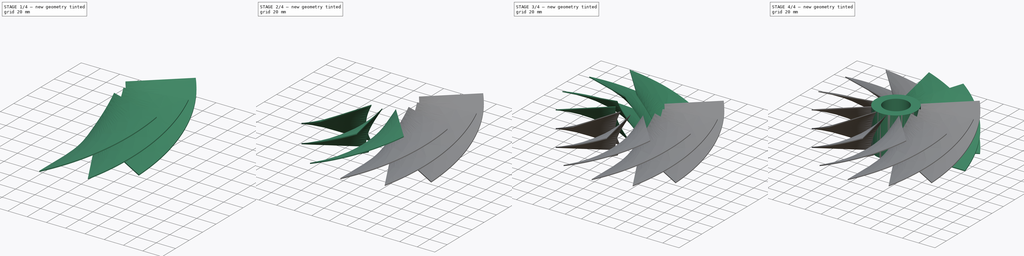
[diagram: build sequence overview — one tinted view per stage of 4, left to right]
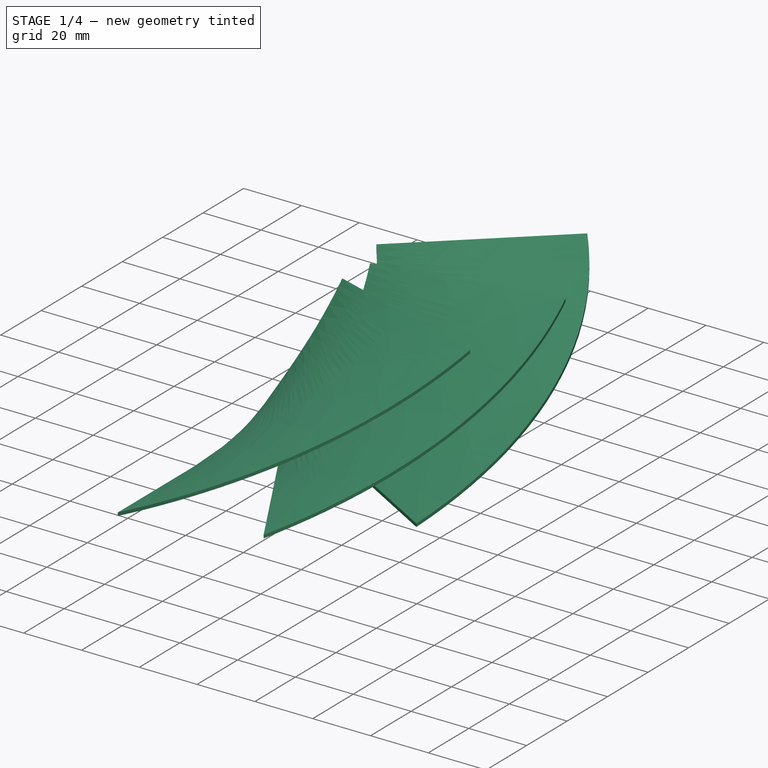
[diagram: stage 1 of 4 — iso view after this stage's code; geometry added in this stage tinted green]
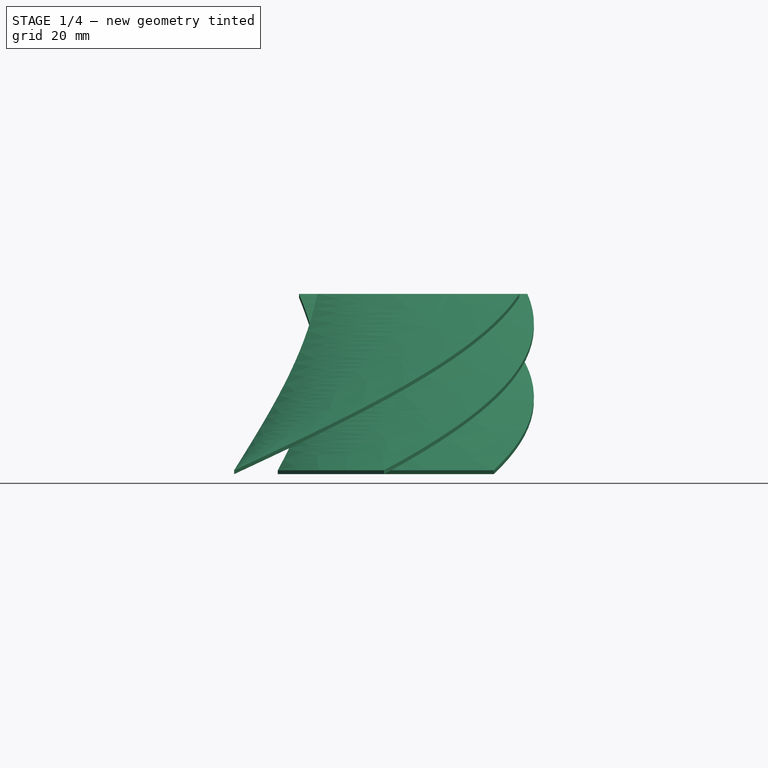
[diagram: stage 1 of 4 — front view after this stage's code; geometry added in this stage tinted green]
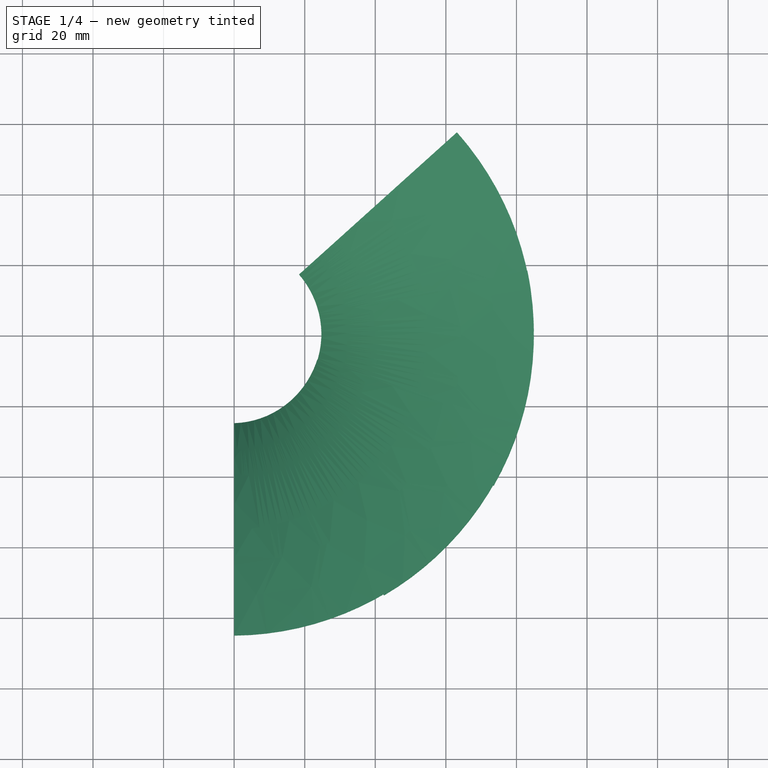
[diagram: stage 1 of 4 — top view after this stage's code; geometry added in this stage tinted green]
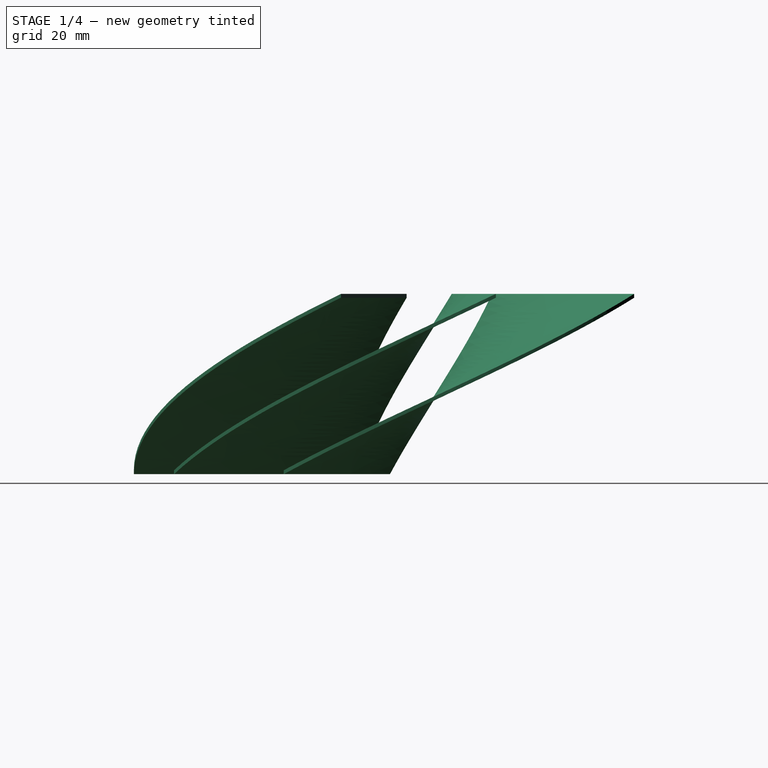
[diagram: stage 1 of 4 — right view after this stage's code; geometry added in this stage tinted green]
FCSTD DOCUMENT  (FreeCAD 0.21R33771 (Git))
Label: ProPeller
License: All rights reserved
LicenseURL: http://en.wikipedia.org/wiki/All_rights_reserved
objects: Part::Helix×12, Sketcher::SketchObject×12, Part::Sweep×12, Part::FeaturePython×1, PartDesign::Body×1
note: 38 computed .brp shape members not serialized (recipe doc carries the construction recipe); baked Part::Feature solids carry a one-line shape summary decoded from their .brp

FEATURE [Part::Helix] Helix012
  Angle = 0
  AttacherType = Attacher::AttachEngine3D
  Height = 50
  LocalCoord = 0
  Pitch = 250
  Radius = 25
  SegmentLength = 0
  Style = 1
FEATURE [Sketcher::SketchObject] Sketch011
  FullyConstrained = false
  MapMode = 5
  Placement = pos=(0,0,0) rot=(1,0,0;1.5708rad)
  sketch-geometry (4):
    g0: LineSegment StartX=24.7345 StartY=0 StartZ=0 EndX=84.951 EndY=0 EndZ=0
    g1: LineSegment StartX=84.951 StartY=0 StartZ=0 EndX=84.951 EndY=-1.10097 EndZ=0
    g2: LineSegment StartX=84.951 StartY=-1.10097 StartZ=0 EndX=24.7345 EndY=-1.10097 EndZ=0
    g3: LineSegment StartX=24.7345 StartY=-1.10097 StartZ=0 EndX=24.7345 EndY=0 EndZ=0
  constraints (9):
    c: Coincident(g0,g1)
    c: Coincident(g1,g2)
    c: Coincident(g2,g3)
    c: Coincident(g3,g0)
    c: Horizontal(g0)
    c: Horizontal(g2)
    c: Vertical(g1)
    c: Vertical(g3)
    c: PointOnObject(g0,g-1)
FEATURE [Part::Sweep] Sweep009
  Frenet = true
  Placement = pos=(0,0,0) rot=(0,0,1;4.71239rad)
  Sections = -> [Sketch011]
  Solid = true
  Spine = -> Helix012 [Edge1]
  Transition = 1
FEATURE [Part::Helix] Helix013
  Angle = 0
  AttacherType = Attacher::AttachEngine3D
  Height = 50
  LocalCoord = 0
  Pitch = 250
  Radius = 25
  SegmentLength = 0
  Style = 1
FEATURE [Sketcher::SketchObject] Sketch012
  FullyConstrained = false
  MapMode = 5
  Placement = pos=(0,0,0) rot=(1,0,0;1.5708rad)
  sketch-geometry (4):
    g0: LineSegment StartX=24.7345 StartY=0 StartZ=0 EndX=84.951 EndY=0 EndZ=0
    g1: LineSegment StartX=84.951 StartY=0 StartZ=0 EndX=84.951 EndY=-1.10097 EndZ=0
    g2: LineSegment StartX=84.951 StartY=-1.10097 StartZ=0 EndX=24.7345 EndY=-1.10097 EndZ=0
    g3: LineSegment StartX=24.7345 StartY=-1.10097 StartZ=0 EndX=24.7345 EndY=0 EndZ=0
  constraints (9):
    c: Coincident(g0,g1)
    c: Coincident(g1,g2)
    c: Coincident(g2,g3)
    c: Coincident(g3,g0)
    c: Horizontal(g0)
    c: Horizontal(g2)
    c: Vertical(g1)
    c: Vertical(g3)
    c: PointOnObject(g0,g-1)
FEATURE [Part::Sweep] Sweep010
  Frenet = true
  Placement = pos=(0,0,0) rot=(0,0,1;5.23599rad)
  Sections = -> [Sketch012]
  Solid = true
  Spine = -> Helix013 [Edge1]
  Transition = 1
FEATURE [Part::Helix] Helix014
  Angle = 0
  AttacherType = Attacher::AttachEngine3D
  Height = 50
  LocalCoord = 0
  Pitch = 250
  Radius = 25
  SegmentLength = 0
  Style = 1
FEATURE [Sketcher::SketchObject] Sketch013
  FullyConstrained = false
  MapMode = 5
  Placement = pos=(0,0,0) rot=(1,0,0;1.5708rad)
  sketch-geometry (4):
    g0: LineSegment StartX=24.7345 StartY=0 StartZ=0 EndX=84.951 EndY=0 EndZ=0
    g1: LineSegment StartX=84.951 StartY=0 StartZ=0 EndX=84.951 EndY=-1.10097 EndZ=0
    g2: LineSegment StartX=84.951 StartY=-1.10097 StartZ=0 EndX=24.7345 EndY=-1.10097 EndZ=0
    g3: LineSegment StartX=24.7345 StartY=-1.10097 StartZ=0 EndX=24.7345 EndY=0 EndZ=0
  constraints (9):
    c: Coincident(g0,g1)
    c: Coincident(g1,g2)
    c: Coincident(g2,g3)
    c: Coincident(g3,g0)
    c: Horizontal(g0)
    c: Horizontal(g2)
    c: Vertical(g1)
    c: Vertical(g3)
    c: PointOnObject(g0,g-1)
FEATURE [Part::Sweep] Sweep011
  Frenet = true
  Placement = pos=(0,0,0) rot=(0,0,1;5.75959rad)
  Sections = -> [Sketch013]
  Solid = true
  Spine = -> Helix014 [Edge1]
  Transition = 1
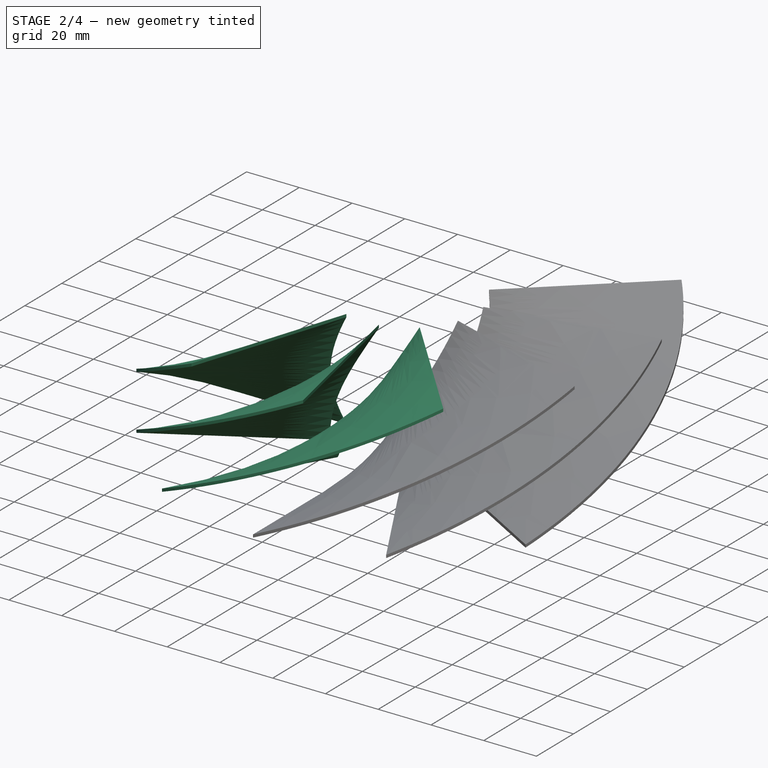
[diagram: stage 2 of 4 — iso view after this stage's code; geometry added in this stage tinted green]
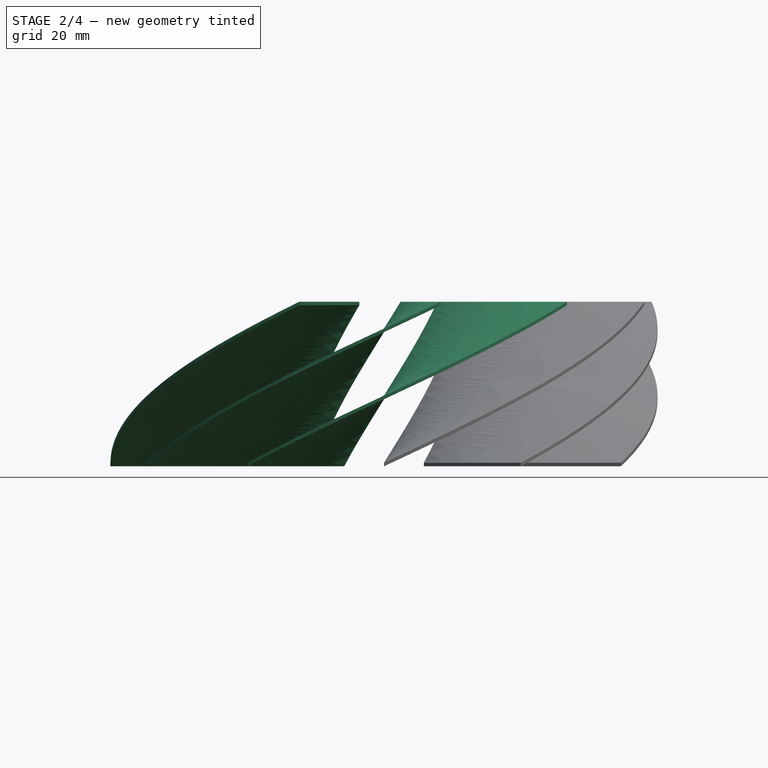
[diagram: stage 2 of 4 — front view after this stage's code; geometry added in this stage tinted green]
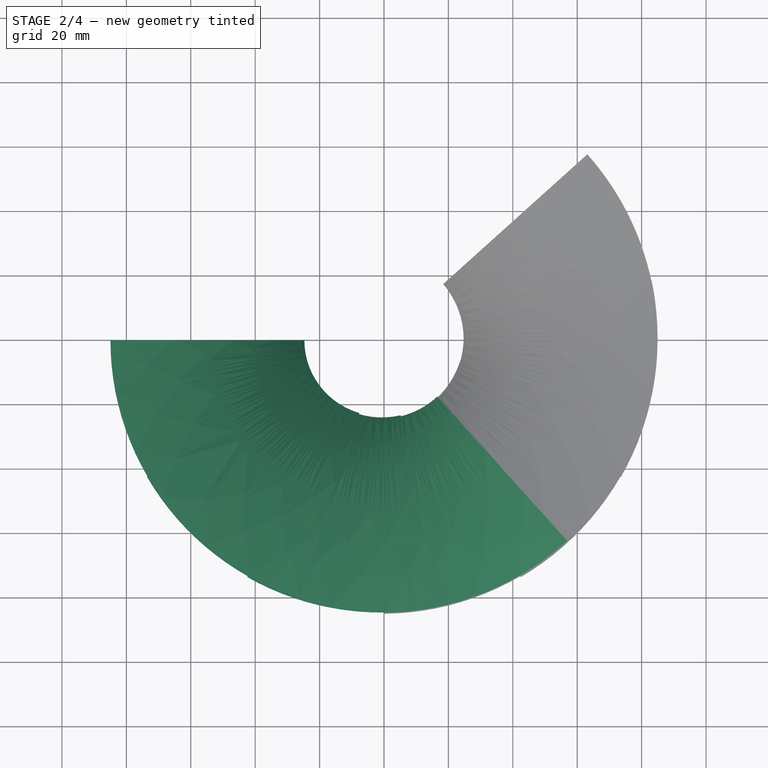
[diagram: stage 2 of 4 — top view after this stage's code; geometry added in this stage tinted green]
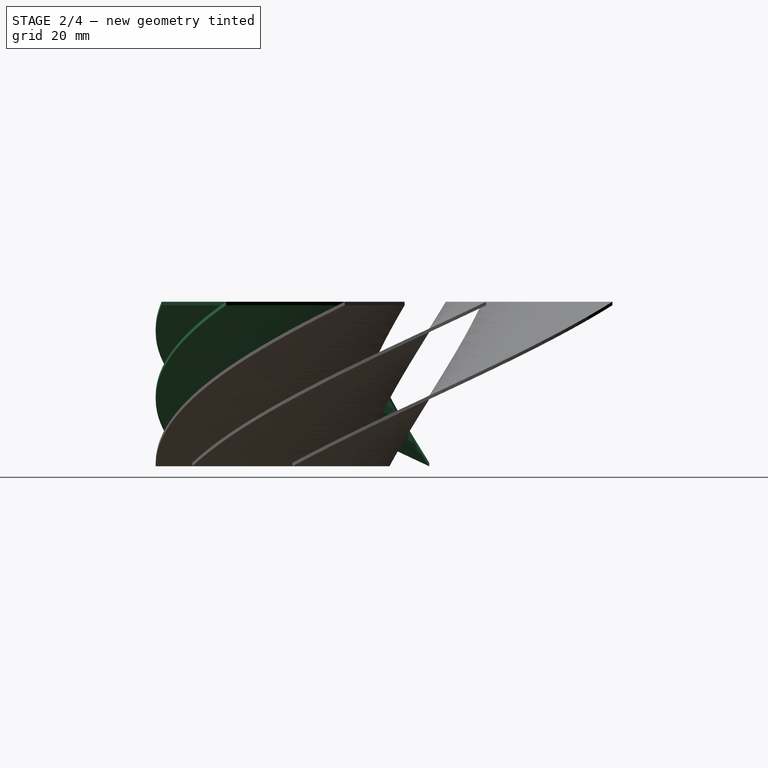
[diagram: stage 2 of 4 — right view after this stage's code; geometry added in this stage tinted green]
FEATURE [Part::Helix] Helix009
  Angle = 0
  AttacherType = Attacher::AttachEngine3D
  Height = 50
  LocalCoord = 0
  Pitch = 250
  Radius = 25
  SegmentLength = 0
  Style = 1
FEATURE [Sketcher::SketchObject] Sketch008
  FullyConstrained = false
  MapMode = 5
  Placement = pos=(0,0,0) rot=(1,0,0;1.5708rad)
  sketch-geometry (4):
    g0: LineSegment StartX=24.7345 StartY=0 StartZ=0 EndX=84.951 EndY=0 EndZ=0
    g1: LineSegment StartX=84.951 StartY=0 StartZ=0 EndX=84.951 EndY=-1.10097 EndZ=0
    g2: LineSegment StartX=84.951 StartY=-1.10097 StartZ=0 EndX=24.7345 EndY=-1.10097 EndZ=0
    g3: LineSegment StartX=24.7345 StartY=-1.10097 StartZ=0 EndX=24.7345 EndY=0 EndZ=0
  constraints (9):
    c: Coincident(g0,g1)
    c: Coincident(g1,g2)
    c: Coincident(g2,g3)
    c: Coincident(g3,g0)
    c: Horizontal(g0)
    c: Horizontal(g2)
    c: Vertical(g1)
    c: Vertical(g3)
    c: PointOnObject(g0,g-1)
FEATURE [Part::Sweep] Sweep006
  Frenet = true
  Placement = pos=(0,0,0) rot=(0,0,1;3.14159rad)
  Sections = -> [Sketch008]
  Solid = true
  Spine = -> Helix009 [Edge1]
  Transition = 1
FEATURE [Part::Helix] Helix010
  Angle = 0
  AttacherType = Attacher::AttachEngine3D
  Height = 50
  LocalCoord = 0
  Pitch = 250
  Radius = 25
  SegmentLength = 0
  Style = 1
FEATURE [Sketcher::SketchObject] Sketch009
  FullyConstrained = false
  MapMode = 5
  Placement = pos=(0,0,0) rot=(1,0,0;1.5708rad)
  sketch-geometry (4):
    g0: LineSegment StartX=24.7345 StartY=0 StartZ=0 EndX=84.951 EndY=0 EndZ=0
    g1: LineSegment StartX=84.951 StartY=0 StartZ=0 EndX=84.951 EndY=-1.10097 EndZ=0
    g2: LineSegment StartX=84.951 StartY=-1.10097 StartZ=0 EndX=24.7345 EndY=-1.10097 EndZ=0
    g3: LineSegment StartX=24.7345 StartY=-1.10097 StartZ=0 EndX=24.7345 EndY=0 EndZ=0
  constraints (9):
    c: Coincident(g0,g1)
    c: Coincident(g1,g2)
    c: Coincident(g2,g3)
    c: Coincident(g3,g0)
    c: Horizontal(g0)
    c: Horizontal(g2)
    c: Vertical(g1)
    c: Vertical(g3)
    c: PointOnObject(g0,g-1)
FEATURE [Part::Sweep] Sweep007
  Frenet = true
  Placement = pos=(0,0,0) rot=(0,0,1;3.66519rad)
  Sections = -> [Sketch009]
  Solid = true
  Spine = -> Helix010 [Edge1]
  Transition = 1
FEATURE [Part::Helix] Helix011
  Angle = 0
  AttacherType = Attacher::AttachEngine3D
  Height = 50
  LocalCoord = 0
  Pitch = 250
  Radius = 25
  SegmentLength = 0
  Style = 1
FEATURE [Sketcher::SketchObject] Sketch010
  FullyConstrained = false
  MapMode = 5
  Placement = pos=(0,0,0) rot=(1,0,0;1.5708rad)
  sketch-geometry (4):
    g0: LineSegment StartX=24.7345 StartY=0 StartZ=0 EndX=84.951 EndY=0 EndZ=0
    g1: LineSegment StartX=84.951 StartY=0 StartZ=0 EndX=84.951 EndY=-1.10097 EndZ=0
    g2: LineSegment StartX=84.951 StartY=-1.10097 StartZ=0 EndX=24.7345 EndY=-1.10097 EndZ=0
    g3: LineSegment StartX=24.7345 StartY=-1.10097 StartZ=0 EndX=24.7345 EndY=0 EndZ=0
  constraints (9):
    c: Coincident(g0,g1)
    c: Coincident(g1,g2)
    c: Coincident(g2,g3)
    c: Coincident(g3,g0)
    c: Horizontal(g0)
    c: Horizontal(g2)
    c: Vertical(g1)
    c: Vertical(g3)
    c: PointOnObject(g0,g-1)
FEATURE [Part::Sweep] Sweep008
  Frenet = true
  Placement = pos=(0,0,0) rot=(0,0,1;4.18879rad)
  Sections = -> [Sketch010]
  Solid = true
  Spine = -> Helix011 [Edge1]
  Transition = 1
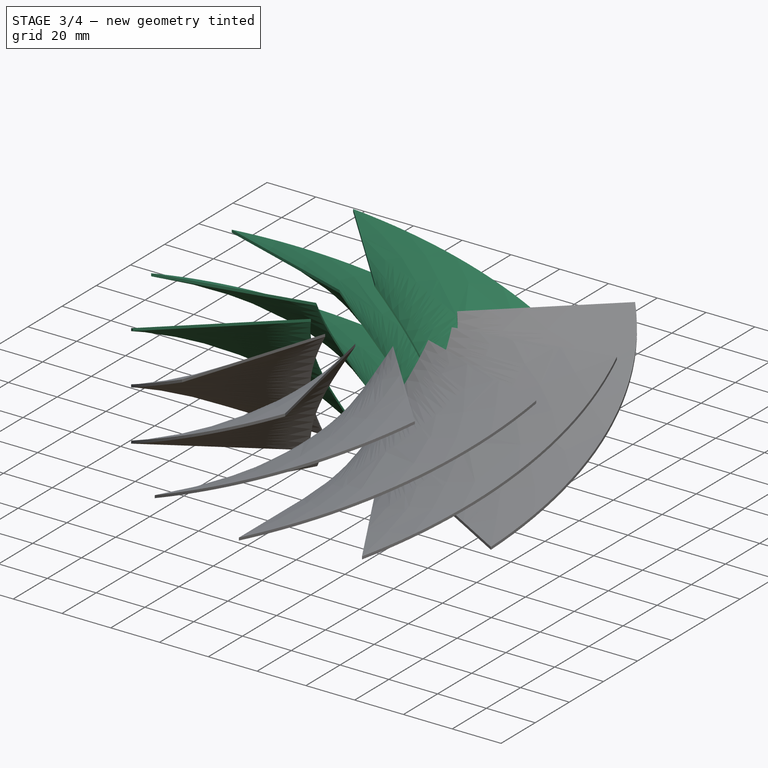
[diagram: stage 3 of 4 — iso view after this stage's code; geometry added in this stage tinted green]
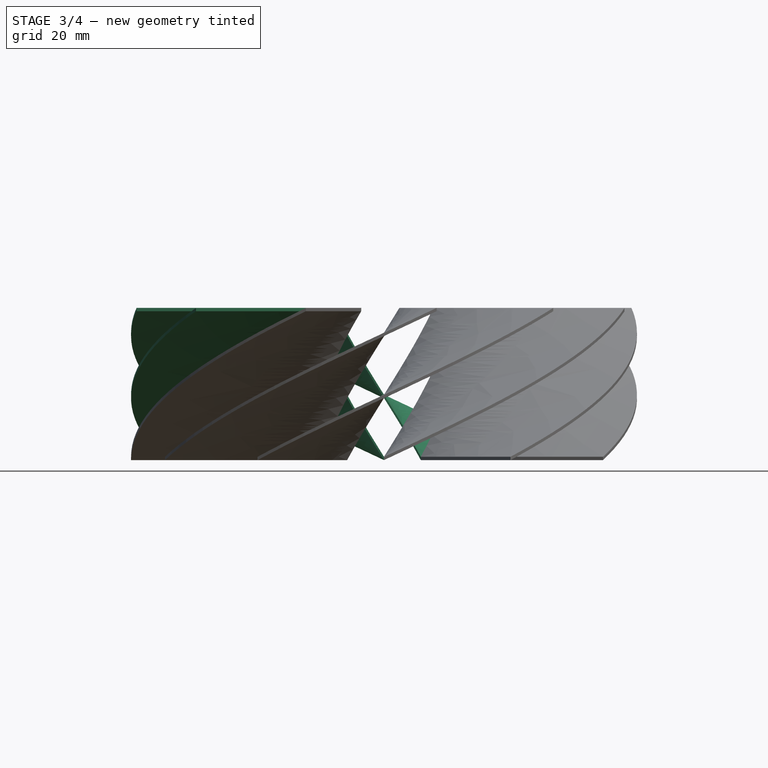
[diagram: stage 3 of 4 — front view after this stage's code; geometry added in this stage tinted green]
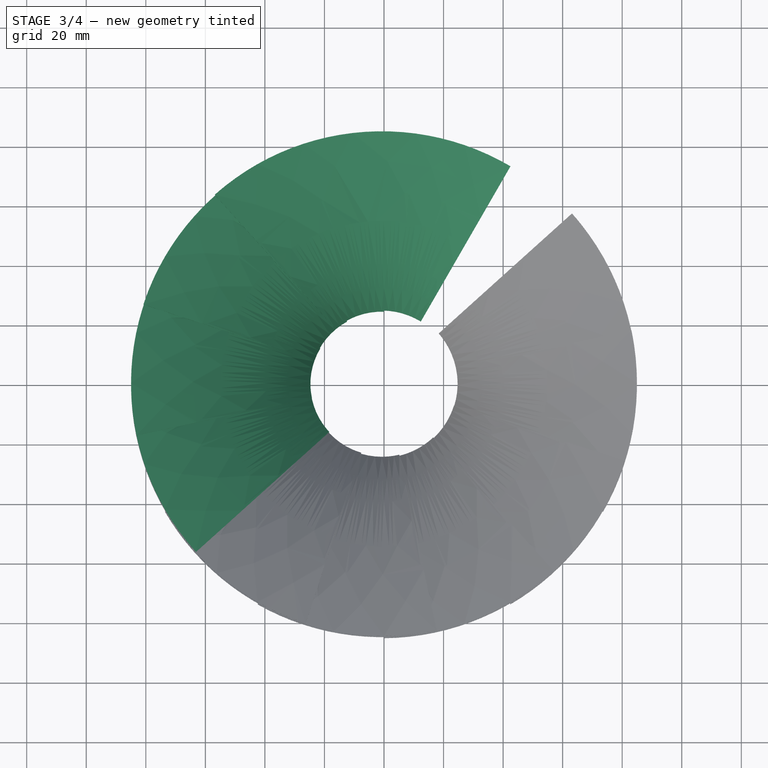
[diagram: stage 3 of 4 — top view after this stage's code; geometry added in this stage tinted green]
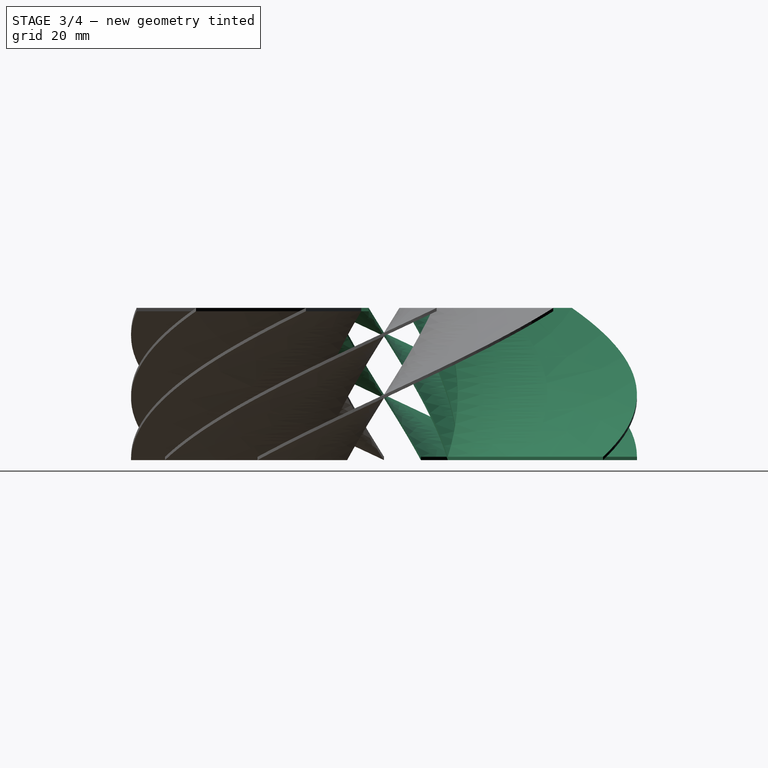
[diagram: stage 3 of 4 — right view after this stage's code; geometry added in this stage tinted green]
FEATURE [Part::Helix] Helix005
  Angle = 0
  AttacherType = Attacher::AttachEngine3D
  Height = 50
  LocalCoord = 0
  Pitch = 250
  Radius = 25
  SegmentLength = 0
  Style = 1
FEATURE [Sketcher::SketchObject] Sketch004
  FullyConstrained = false
  MapMode = 5
  Placement = pos=(0,0,0) rot=(1,0,0;1.5708rad)
  sketch-geometry (4):
    g0: LineSegment StartX=24.7345 StartY=0 StartZ=0 EndX=84.951 EndY=0 EndZ=0
    g1: LineSegment StartX=84.951 StartY=0 StartZ=0 EndX=84.951 EndY=-1.10097 EndZ=0
    g2: LineSegment StartX=84.951 StartY=-1.10097 StartZ=0 EndX=24.7345 EndY=-1.10097 EndZ=0
    g3: LineSegment StartX=24.7345 StartY=-1.10097 StartZ=0 EndX=24.7345 EndY=0 EndZ=0
  constraints (9):
    c: Coincident(g0,g1)
    c: Coincident(g1,g2)
    c: Coincident(g2,g3)
    c: Coincident(g3,g0)
    c: Horizontal(g0)
    c: Horizontal(g2)
    c: Vertical(g1)
    c: Vertical(g3)
    c: PointOnObject(g0,g-1)
FEATURE [Part::Sweep] Sweep002
  Frenet = true
  Placement = pos=(0,0,0) rot=(0,0,1;1.0472rad)
  Sections = -> [Sketch004]
  Solid = true
  Spine = -> Helix005 [Edge1]
  Transition = 1
FEATURE [Part::Helix] Helix006
  Angle = 0
  AttacherType = Attacher::AttachEngine3D
  Height = 50
  LocalCoord = 0
  Pitch = 250
  Radius = 25
  SegmentLength = 0
  Style = 1
FEATURE [Sketcher::SketchObject] Sketch005
  FullyConstrained = false
  MapMode = 5
  Placement = pos=(0,0,0) rot=(1,0,0;1.5708rad)
  sketch-geometry (4):
    g0: LineSegment StartX=24.7345 StartY=0 StartZ=0 EndX=84.951 EndY=0 EndZ=0
    g1: LineSegment StartX=84.951 StartY=0 StartZ=0 EndX=84.951 EndY=-1.10097 EndZ=0
    g2: LineSegment StartX=84.951 StartY=-1.10097 StartZ=0 EndX=24.7345 EndY=-1.10097 EndZ=0
    g3: LineSegment StartX=24.7345 StartY=-1.10097 StartZ=0 EndX=24.7345 EndY=0 EndZ=0
  constraints (9):
    c: Coincident(g0,g1)
    c: Coincident(g1,g2)
    c: Coincident(g2,g3)
    c: Coincident(g3,g0)
    c: Horizontal(g0)
    c: Horizontal(g2)
    c: Vertical(g1)
    c: Vertical(g3)
    c: PointOnObject(g0,g-1)
FEATURE [Part::Sweep] Sweep003
  Frenet = true
  Placement = pos=(0,0,0) rot=(0,0,1;1.5708rad)
  Sections = -> [Sketch005]
  Solid = true
  Spine = -> Helix006 [Edge1]
  Transition = 1
FEATURE [Part::Helix] Helix007
  Angle = 0
  AttacherType = Attacher::AttachEngine3D
  Height = 50
  LocalCoord = 0
  Pitch = 250
  Radius = 25
  SegmentLength = 0
  Style = 1
FEATURE [Sketcher::SketchObject] Sketch006
  FullyConstrained = false
  MapMode = 5
  Placement = pos=(0,0,0) rot=(1,0,0;1.5708rad)
  sketch-geometry (4):
    g0: LineSegment StartX=24.7345 StartY=0 StartZ=0 EndX=84.951 EndY=0 EndZ=0
    g1: LineSegment StartX=84.951 StartY=0 StartZ=0 EndX=84.951 EndY=-1.10097 EndZ=0
    g2: LineSegment StartX=84.951 StartY=-1.10097 StartZ=0 EndX=24.7345 EndY=-1.10097 EndZ=0
    g3: LineSegment StartX=24.7345 StartY=-1.10097 StartZ=0 EndX=24.7345 EndY=0 EndZ=0
  constraints (9):
    c: Coincident(g0,g1)
    c: Coincident(g1,g2)
    c: Coincident(g2,g3)
    c: Coincident(g3,g0)
    c: Horizontal(g0)
    c: Horizontal(g2)
    c: Vertical(g1)
    c: Vertical(g3)
    c: PointOnObject(g0,g-1)
FEATURE [Part::Sweep] Sweep004
  Frenet = true
  Placement = pos=(0,0,0) rot=(0,0,1;2.0944rad)
  Sections = -> [Sketch006]
  Solid = true
  Spine = -> Helix007 [Edge1]
  Transition = 1
FEATURE [Part::Helix] Helix008
  Angle = 0
  AttacherType = Attacher::AttachEngine3D
  Height = 50
  LocalCoord = 0
  Pitch = 250
  Radius = 25
  SegmentLength = 0
  Style = 1
FEATURE [Sketcher::SketchObject] Sketch007
  FullyConstrained = false
  MapMode = 5
  Placement = pos=(0,0,0) rot=(1,0,0;1.5708rad)
  sketch-geometry (4):
    g0: LineSegment StartX=24.7345 StartY=0 StartZ=0 EndX=84.951 EndY=0 EndZ=0
    g1: LineSegment StartX=84.951 StartY=0 StartZ=0 EndX=84.951 EndY=-1.10097 EndZ=0
    g2: LineSegment StartX=84.951 StartY=-1.10097 StartZ=0 EndX=24.7345 EndY=-1.10097 EndZ=0
    g3: LineSegment StartX=24.7345 StartY=-1.10097 StartZ=0 EndX=24.7345 EndY=0 EndZ=0
  constraints (9):
    c: Coincident(g0,g1)
    c: Coincident(g1,g2)
    c: Coincident(g2,g3)
    c: Coincident(g3,g0)
    c: Horizontal(g0)
    c: Horizontal(g2)
    c: Vertical(g1)
    c: Vertical(g3)
    c: PointOnObject(g0,g-1)
FEATURE [Part::Sweep] Sweep005
  Frenet = true
  Placement = pos=(0,0,0) rot=(0,0,1;2.61799rad)
  Sections = -> [Sketch007]
  Solid = true
  Spine = -> Helix008 [Edge1]
  Transition = 1
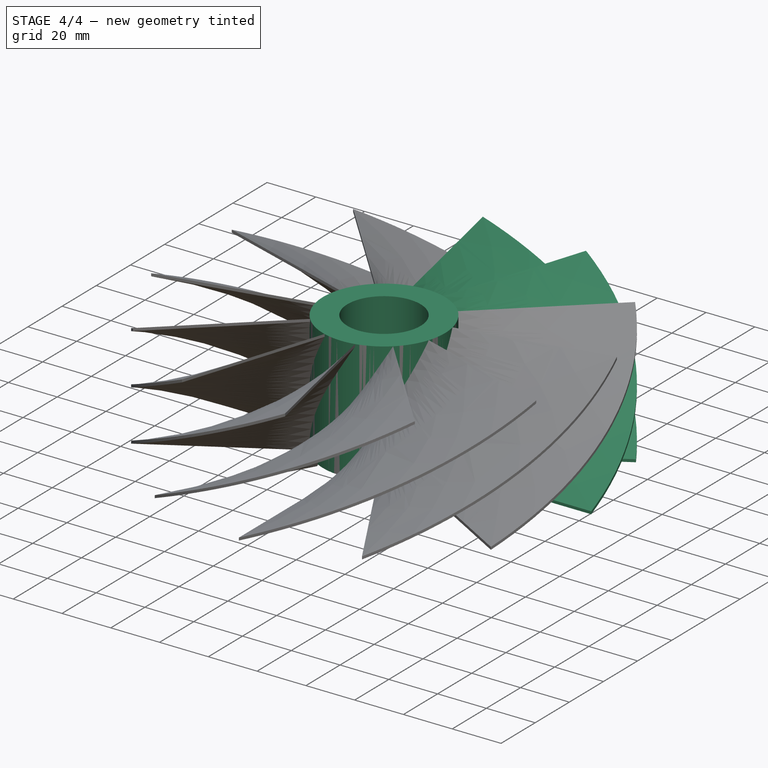
[diagram: stage 4 of 4 — iso view after this stage's code; geometry added in this stage tinted green]
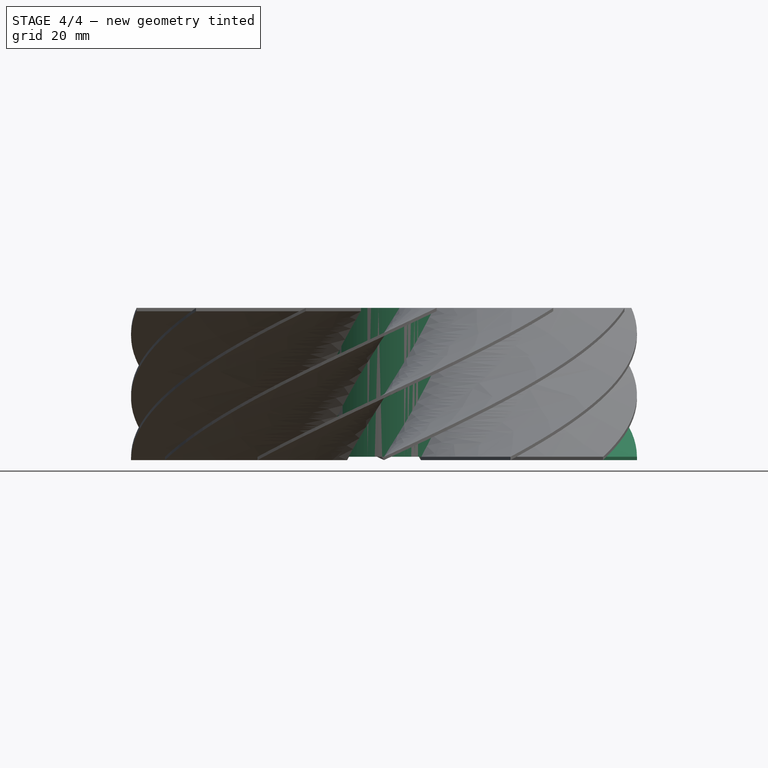
[diagram: stage 4 of 4 — front view after this stage's code; geometry added in this stage tinted green]
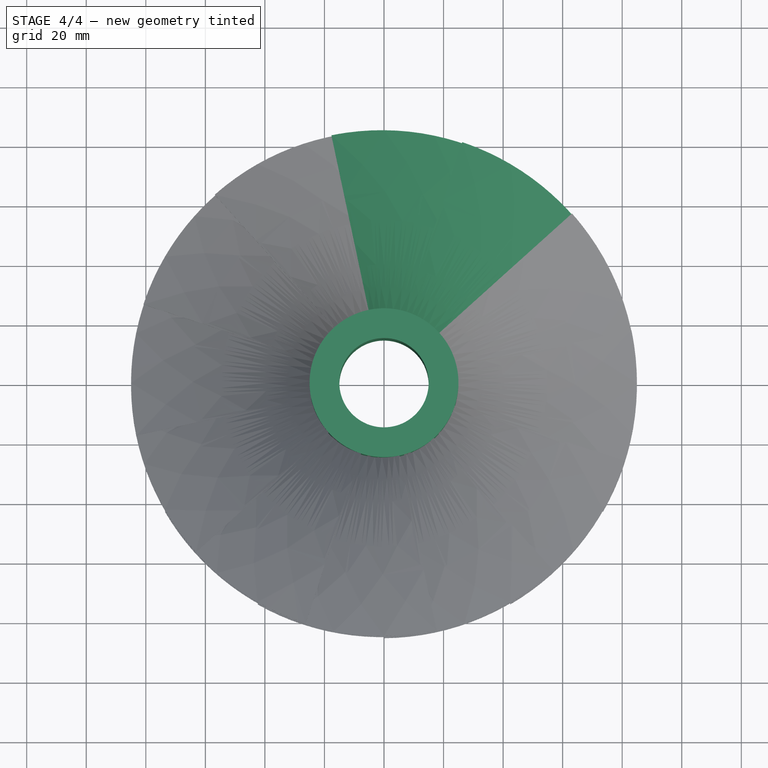
[diagram: stage 4 of 4 — top view after this stage's code; geometry added in this stage tinted green]
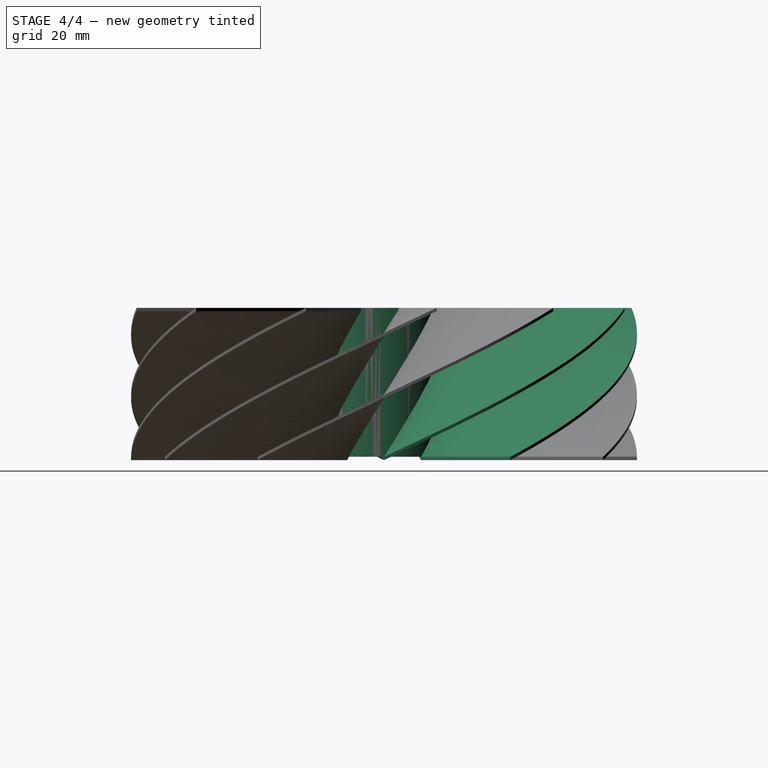
[diagram: stage 4 of 4 — right view after this stage's code; geometry added in this stage tinted green]
FEATURE [Part::FeaturePython] Tube  # WARN: FeaturePython — macro-defined, semantics opaque (R4)
  AttacherType = Attacher::AttachEngine3D
  Height = 50
  InnerRadius = 15
  OuterRadius = 25
FEATURE [Part::Helix] Helix003
  Angle = 0
  AttacherType = Attacher::AttachEngine3D
  Height = 50
  LocalCoord = 0
  Pitch = 250
  Radius = 25
  SegmentLength = 0
  Style = 1
FEATURE [Sketcher::SketchObject] Sketch002
  FullyConstrained = false
  MapMode = 5
  Placement = pos=(0,0,0) rot=(1,0,0;1.5708rad)
  sketch-geometry (4):
    g0: LineSegment StartX=24.7345 StartY=0 StartZ=0 EndX=84.951 EndY=0 EndZ=0
    g1: LineSegment StartX=84.951 StartY=0 StartZ=0 EndX=84.951 EndY=-1.10097 EndZ=0
    g2: LineSegment StartX=84.951 StartY=-1.10097 StartZ=0 EndX=24.7345 EndY=-1.10097 EndZ=0
    g3: LineSegment StartX=24.7345 StartY=-1.10097 StartZ=0 EndX=24.7345 EndY=0 EndZ=0
  constraints (9):
    c: Coincident(g0,g1)
    c: Coincident(g1,g2)
    c: Coincident(g2,g3)
    c: Coincident(g3,g0)
    c: Horizontal(g0)
    c: Horizontal(g2)
    c: Vertical(g1)
    c: Vertical(g3)
    c: PointOnObject(g0,g-1)
FEATURE [PartDesign::Body] Body
  Group = -> [Sketch002]
  Origin = -> Origin
FEATURE [Part::Sweep] Sweep
  Frenet = true
  Sections = -> [Sketch002]
  Solid = true
  Spine = -> Helix003 [Edge1]
  Transition = 1
FEATURE [Part::Helix] Helix004
  Angle = 0
  AttacherType = Attacher::AttachEngine3D
  Height = 50
  LocalCoord = 0
  Pitch = 250
  Radius = 25
  SegmentLength = 0
  Style = 1
FEATURE [Sketcher::SketchObject] Sketch003
  FullyConstrained = false
  MapMode = 5
  Placement = pos=(0,0,0) rot=(1,0,0;1.5708rad)
  sketch-geometry (4):
    g0: LineSegment StartX=24.7345 StartY=0 StartZ=0 EndX=84.951 EndY=0 EndZ=0
    g1: LineSegment StartX=84.951 StartY=0 StartZ=0 EndX=84.951 EndY=-1.10097 EndZ=0
    g2: LineSegment StartX=84.951 StartY=-1.10097 StartZ=0 EndX=24.7345 EndY=-1.10097 EndZ=0
    g3: LineSegment StartX=24.7345 StartY=-1.10097 StartZ=0 EndX=24.7345 EndY=0 EndZ=0
  constraints (9):
    c: Coincident(g0,g1)
    c: Coincident(g1,g2)
    c: Coincident(g2,g3)
    c: Coincident(g3,g0)
    c: Horizontal(g0)
    c: Horizontal(g2)
    c: Vertical(g1)
    c: Vertical(g3)
    c: PointOnObject(g0,g-1)
FEATURE [Part::Sweep] Sweep001
  Frenet = true
  Placement = pos=(0,0,0) rot=(0,0,1;0.523599rad)
  Sections = -> [Sketch003]
  Solid = true
  Spine = -> Helix004 [Edge1]
  Transition = 1
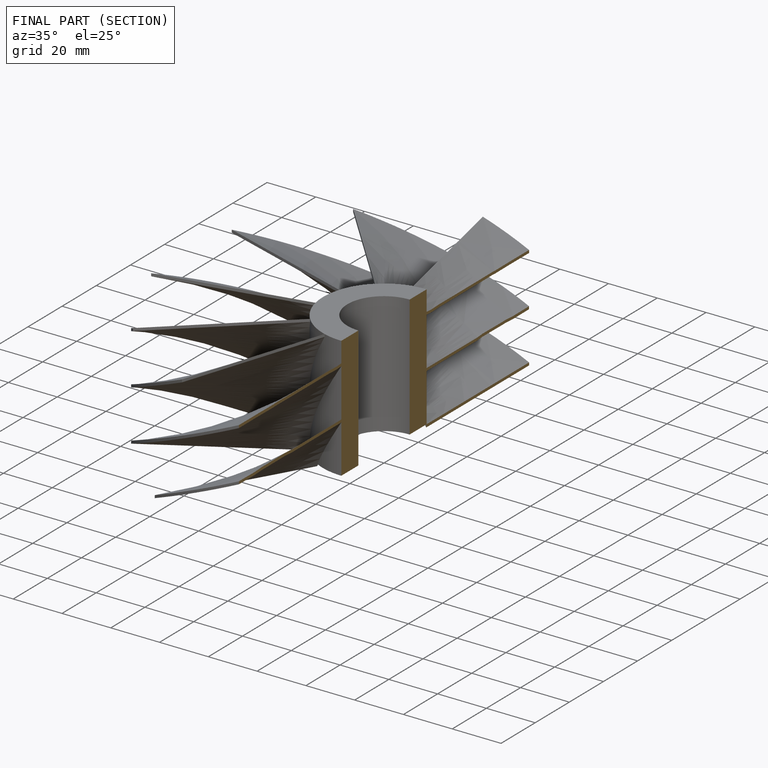
[diagram: finished part — half-section view (interior)]
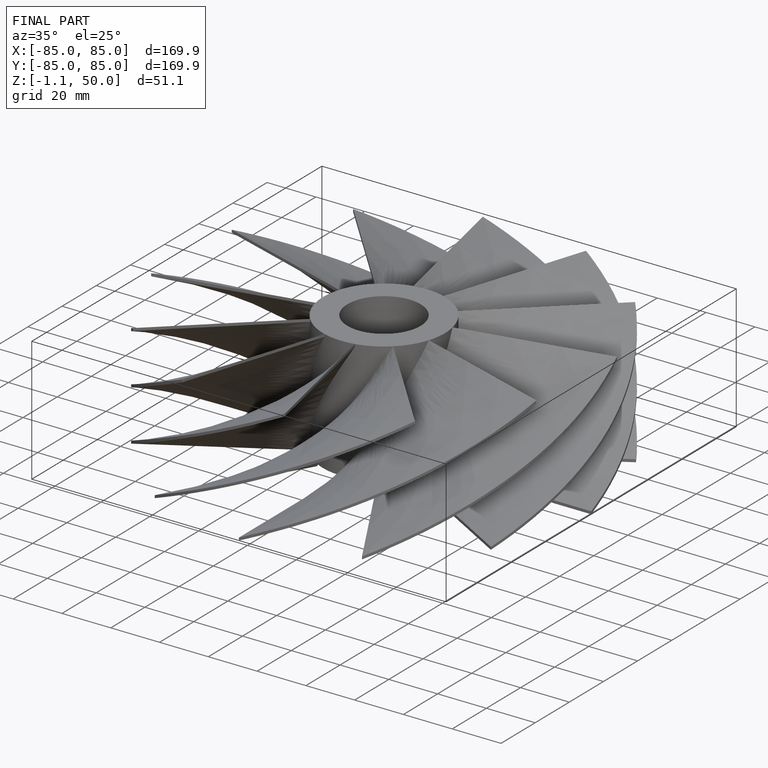
[diagram: finished part — iso view with bounding-box wireframe]
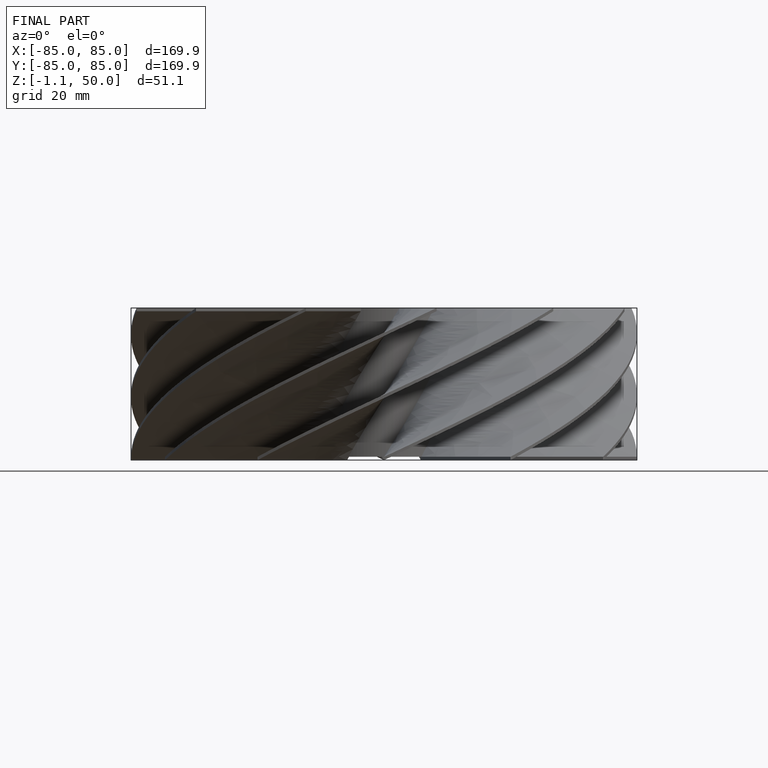
[diagram: finished part — front view with bounding-box wireframe]
